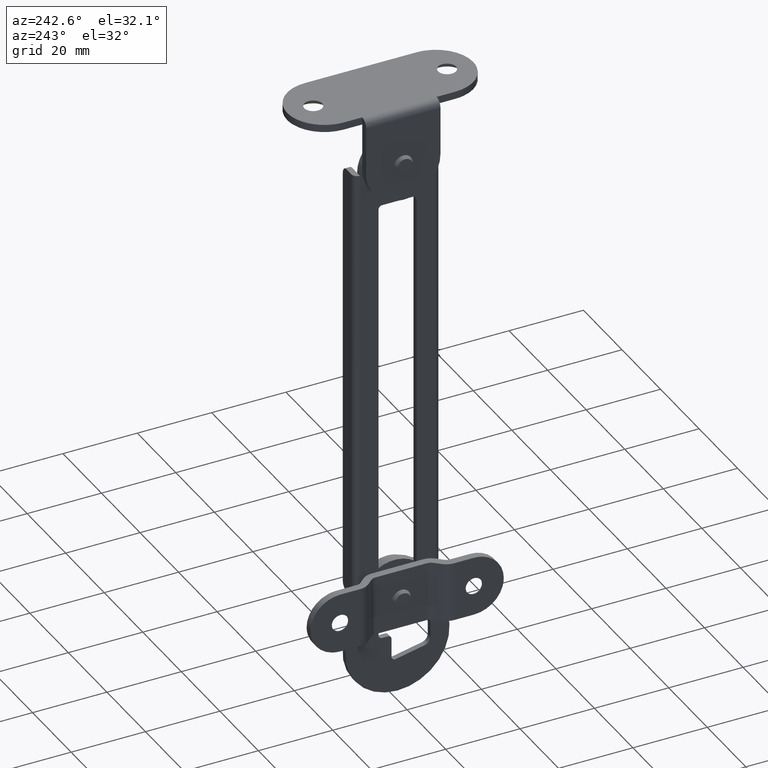
[diagram: clean part render]
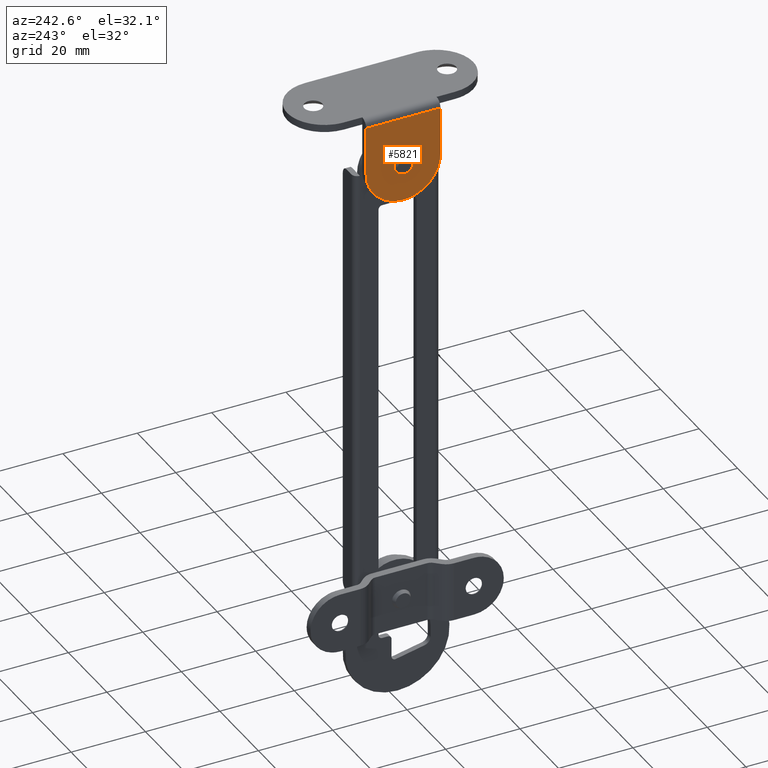
[diagram: same view with one face highlighted and labeled with its STEP entity id]
A machine part, auxiliary view. The second image highlights one B-rep face of the part: STEP entity #5821.
In plain terms, the highlighted face is a freeform B-spline surface patch.
Its self-contained STEP definition (entity closure, byte-faithful):
#5368=CARTESIAN_POINT('',(2.000000000000994,-1.450748380873827,-1.376709511999949));
#5369=VERTEX_POINT('',#5368);
#5370=CARTESIAN_POINT('',(2.0,0.0,-2.0));
#5371=VERTEX_POINT('',#5370);
#5372=CARTESIAN_POINT('',(2.000000000000994,-1.450748380873827,-1.376709511999949));
#5373=CARTESIAN_POINT('',(2.000000000000881,-1.287904661021033,-1.548531089492966));
#5374=CARTESIAN_POINT('',(2.000000000000583,-0.844941414212568,-1.873916119919145));
#5375=CARTESIAN_POINT('',(2.000000000000208,-0.304442128513676,-2.000540003915707));
#5376=CARTESIAN_POINT('',(2.0,0.0,-2.0));
#5377=B_SPLINE_CURVE_WITH_KNOTS('',3,(#5372,#5373,#5374,#5375,#5376),.UNSPECIFIED.,.F.,.U.,(4,1,4),(0.000000165961596,0.710165990685335,1.623199179618800),.UNSPECIFIED.);
#5378=EDGE_CURVE('',#5369,#5371,#5377,.T.);
#5420=CARTESIAN_POINT('',(2.000000000000994,1.450748380873826,1.376709511999948));
#5421=VERTEX_POINT('',#5420);
#5427=CARTESIAN_POINT('',(2.0,1.999999999999999,-2.997602E-015));
#5428=VERTEX_POINT('',#5427);
#5429=CARTESIAN_POINT('',(2.0,1.999999999999999,-2.997602E-015));
#5430=CARTESIAN_POINT('',(2.000000000000206,2.000421442474533,0.284796959247083));
#5431=CARTESIAN_POINT('',(2.000000000000570,1.889903492223504,0.790496496285163));
#5432=CARTESIAN_POINT('',(2.000000000000878,1.603292312132963,1.216181179567526));
#5433=CARTESIAN_POINT('',(2.000000000000994,1.450748380873826,1.376709511999948));
#5434=B_SPLINE_CURVE_WITH_KNOTS('',3,(#5429,#5430,#5431,#5432,#5433),.UNSPECIFIED.,.F.,.U.,(4,1,4),(0.000000143900535,0.854200274471321,1.518579273383938),.UNSPECIFIED.);
#5435=EDGE_CURVE('',#5428,#5421,#5434,.T.);
#5437=CARTESIAN_POINT('',(2.0,0.0,-2.0));
#5438=CARTESIAN_POINT('',(2.0,0.245447146235138,-2.000164149221257));
#5439=CARTESIAN_POINT('',(2.0,0.752601543303372,-1.905512412758485));
#5440=CARTESIAN_POINT('',(2.0,1.443435349700029,-1.468557112156883));
#5441=CARTESIAN_POINT('',(1.999999999999998,1.899565989218562,-0.785335970823684));
#5442=CARTESIAN_POINT('',(2.000000000000004,2.000157534144228,-0.245442657751544));
#5443=CARTESIAN_POINT('',(2.0,1.999999999999999,-2.997602E-015));
#5444=B_SPLINE_CURVE_WITH_KNOTS('',3,(#5437,#5438,#5439,#5440,#5441,#5442,#5443),.UNSPECIFIED.,.F.,.U.,(4,1,1,1,4),(0.000000633080741,0.736327350112152,1.521840891735241,2.405343544169009,3.141671488830993),.UNSPECIFIED.);
#5445=EDGE_CURVE('',#5371,#5428,#5444,.T.);
#5468=CARTESIAN_POINT('',(2.0,-1.999999999999999,-2.997602E-015));
#5469=VERTEX_POINT('',#5468);
#5470=CARTESIAN_POINT('',(2.0,-1.999999999999999,-2.997602E-015));
#5471=CARTESIAN_POINT('',(2.000000000000203,-2.000419845742951,-0.284798310452020));
#5472=CARTESIAN_POINT('',(2.000000000000577,-1.889903243335299,-0.790493335012400));
#5473=CARTESIAN_POINT('',(2.000000000000875,-1.603292775232216,-1.216182829421354));
#5474=CARTESIAN_POINT('',(2.000000000000994,-1.450748380873827,-1.376709511999949));
#5475=B_SPLINE_CURVE_WITH_KNOTS('',3,(#5470,#5471,#5472,#5473,#5474),.UNSPECIFIED.,.F.,.U.,(4,1,4),(0.000000143900541,0.854200274471319,1.518579273383933),.UNSPECIFIED.);
#5476=EDGE_CURVE('',#5469,#5369,#5475,.T.);
#5478=CARTESIAN_POINT('',(2.0,0.0,2.0));
#5479=VERTEX_POINT('',#5478);
#5480=CARTESIAN_POINT('',(2.0,0.0,2.0));
#5481=CARTESIAN_POINT('',(1.999999999999996,-0.310992359604091,2.000503824327716));
#5482=CARTESIAN_POINT('',(2.000000000000008,-0.801351850867367,1.883203626769986));
#5483=CARTESIAN_POINT('',(1.999999999999994,-1.345900593132887,1.509319211407785));
#5484=CARTESIAN_POINT('',(2.000000000000008,-1.668945202981829,1.134839510326053));
#5485=CARTESIAN_POINT('',(1.999999999999994,-1.926743214975993,0.638006854691331));
#5486=CARTESIAN_POINT('',(2.000000000000004,-2.000225625408096,0.245475495836531));
#5487=CARTESIAN_POINT('',(2.0,-1.999999999999999,-2.997602E-015));
#5488=B_SPLINE_CURVE_WITH_KNOTS('',3,(#5480,#5481,#5482,#5483,#5484,#5485,#5486,#5487),.UNSPECIFIED.,.F.,.U.,(4,1,1,1,1,4),(0.000000633080732,0.932686972909395,1.472688431323300,1.963502041530828,2.405343544169010,3.141671488830995),.UNSPECIFIED.);
#5489=EDGE_CURVE('',#5479,#5469,#5488,.T.);
#5491=CARTESIAN_POINT('',(2.000000000000994,1.450748380873826,1.376709511999948));
#5492=CARTESIAN_POINT('',(2.000000000000896,1.311136772944340,1.523936507173152));
#5493=CARTESIAN_POINT('',(2.000000000000606,0.878463212899495,1.859261817932828));
#5494=CARTESIAN_POINT('',(2.000000000000230,0.338363549371349,2.000863033800902));
#5495=CARTESIAN_POINT('',(2.0,0.0,2.0));
#5496=B_SPLINE_CURVE_WITH_KNOTS('',3,(#5491,#5492,#5493,#5494,#5495),.UNSPECIFIED.,.F.,.U.,(4,1,4),(0.000000165961614,0.608718135624846,1.623199179618799),.UNSPECIFIED.);
#5497=EDGE_CURVE('',#5421,#5479,#5496,.T.);
#5723=CARTESIAN_POINT('',(2.0,-10.0,13.0));
#5724=VERTEX_POINT('',#5723);
#5742=CARTESIAN_POINT('',(2.0,10.0,13.0));
#5743=VERTEX_POINT('',#5742);
#5755=CARTESIAN_POINT('',(2.0,-10.0,13.0));
#5756=CARTESIAN_POINT('',(2.0,10.0,13.0));
#5757=QUASI_UNIFORM_CURVE('',1,(#5755,#5756),.UNSPECIFIED.,.F.,.U.);
#5758=EDGE_CURVE('',#5724,#5743,#5757,.T.);
#5763=CARTESIAN_POINT('',(2.0,-10.998999961236120,-11.148849955420941));
#5764=CARTESIAN_POINT('',(2.0,10.999000497677921,-11.148849955420941));
#5765=CARTESIAN_POINT('',(2.0,-10.998999961236120,14.148850572329589));
#5766=CARTESIAN_POINT('',(2.0,10.999000497677921,14.148850572329589));
#5767=B_SPLINE_SURFACE_WITH_KNOTS('',1,1,((#5763,#5765),(#5764,#5766)),.UNSPECIFIED.,.F.,.F.,.U.,(2,2),(2,2),(0.0,21.998000458914039),(0.0,25.297700527750528),.UNSPECIFIED.);
#5768=CARTESIAN_POINT('',(2.0,-10.0,-1.224606E-015));
#5769=VERTEX_POINT('',#5768);
#5770=CARTESIAN_POINT('',(2.0,-10.0,-1.224606E-015));
#5771=CARTESIAN_POINT('',(2.0,-10.0,13.0));
#5772=QUASI_UNIFORM_CURVE('',1,(#5770,#5771),.UNSPECIFIED.,.F.,.U.);
#5773=EDGE_CURVE('',#5769,#5724,#5772,.T.);
#5774=ORIENTED_EDGE('',*,*,#5773,.T.);
#5775=ORIENTED_EDGE('',*,*,#5758,.T.);
#5776=CARTESIAN_POINT('',(2.0,10.0,0.0));
#5777=VERTEX_POINT('',#5776);
#5778=CARTESIAN_POINT('',(2.0,10.0,13.0));
#5779=CARTESIAN_POINT('',(2.0,10.0,0.0));
#5780=QUASI_UNIFORM_CURVE('',1,(#5778,#5779),.UNSPECIFIED.,.F.,.U.);
#5781=EDGE_CURVE('',#5743,#5777,#5780,.T.);
#5782=ORIENTED_EDGE('',*,*,#5781,.T.);
#5783=CARTESIAN_POINT('',(2.0,0.000003361668960,-9.999999999999435));
#5784=VERTEX_POINT('',#5783);
#5785=CARTESIAN_POINT('',(2.0,0.000003361668960,-9.999999999999435));
#5786=CARTESIAN_POINT('',(1.999999999999996,0.736311533658834,-10.000133319476509));
#5787=CARTESIAN_POINT('',(2.0,2.208875305272722,-9.836635675956805));
#5788=CARTESIAN_POINT('',(2.000000000000008,4.271593218943476,-9.127145866156985));
#5789=CARTESIAN_POINT('',(1.999999999999990,5.853179364519722,-8.165765429415860));
#5790=CARTESIAN_POINT('',(2.000000000000014,7.156514209108203,-7.041424227325171));
#5791=CARTESIAN_POINT('',(1.999999999999983,8.355487299990939,-5.634409523974978));
#5792=CARTESIAN_POINT('',(2.000000000000018,9.618483914945427,-3.271817665330239));
#5793=CARTESIAN_POINT('',(1.999999999999989,10.001147634541050,-1.227362405943791));
#5794=CARTESIAN_POINT('',(2.0,10.0,0.0));
#5795=B_SPLINE_CURVE_WITH_KNOTS('',3,(#5785,#5786,#5787,#5788,#5789,#5790,#5791,#5792,#5793,#5794),.UNSPECIFIED.,.F.,.U.,(4,1,1,1,1,1,1,4),(0.000000330253794,2.208903225677132,4.417904217725122,6.504191254654183,7.731409998449047,9.572061320586990,12.026489566835609,15.708059934073839),.UNSPECIFIED.);
#5796=EDGE_CURVE('',#5784,#5777,#5795,.T.);
#5797=ORIENTED_EDGE('',*,*,#5796,.F.);
#5798=CARTESIAN_POINT('',(2.0,-10.0,-1.224606E-015));
#5799=CARTESIAN_POINT('',(1.999999999999994,-10.000726092236910,-1.145435366712159));
#5800=CARTESIAN_POINT('',(2.000000000000017,-9.644741884857194,-3.190323384712481));
#5801=CARTESIAN_POINT('',(1.999999999999982,-8.389782604813236,-5.608538523339407));
#5802=CARTESIAN_POINT('',(2.000000000000016,-7.047220739754759,-7.164609686826893));
#5803=CARTESIAN_POINT('',(1.999999999999991,-5.557057984569950,-8.387692906267574));
#5804=CARTESIAN_POINT('',(2.0,-4.000400719460246,-9.232073063071614));
#5805=CARTESIAN_POINT('',(2.000000000000007,-2.045221328072166,-9.851358553800505));
#5806=CARTESIAN_POINT('',(1.999999999999997,-0.777228984094417,-10.000182107554890));
#5807=CARTESIAN_POINT('',(2.0,0.000003361668960,-9.999999999999435));
#5808=B_SPLINE_CURVE_WITH_KNOTS('',3,(#5798,#5799,#5800,#5801,#5802,#5803,#5804,#5805,#5806,#5807),.UNSPECIFIED.,.F.,.U.,(4,1,1,1,1,1,1,4),(0.000000329086534,3.436135206009576,6.136006754438480,8.099410723543333,9.572063633233126,11.903768577872571,13.376409434633960,15.708063723482001),.UNSPECIFIED.);
#5809=EDGE_CURVE('',#5769,#5784,#5808,.T.);
#5810=ORIENTED_EDGE('',*,*,#5809,.F.);
#5811=EDGE_LOOP('',(#5774,#5775,#5782,#5797,#5810));
#5812=FACE_OUTER_BOUND('',#5811,.T.);
#5813=ORIENTED_EDGE('',*,*,#5489,.T.);
#5814=ORIENTED_EDGE('',*,*,#5476,.T.);
#5815=ORIENTED_EDGE('',*,*,#5378,.T.);
#5816=ORIENTED_EDGE('',*,*,#5445,.T.);
#5817=ORIENTED_EDGE('',*,*,#5435,.T.);
#5818=ORIENTED_EDGE('',*,*,#5497,.T.);
#5819=EDGE_LOOP('',(#5813,#5814,#5815,#5816,#5817,#5818));
#5820=FACE_BOUND('',#5819,.T.);
#5821=ADVANCED_FACE('',(#5812,#5820),#5767,.F.);